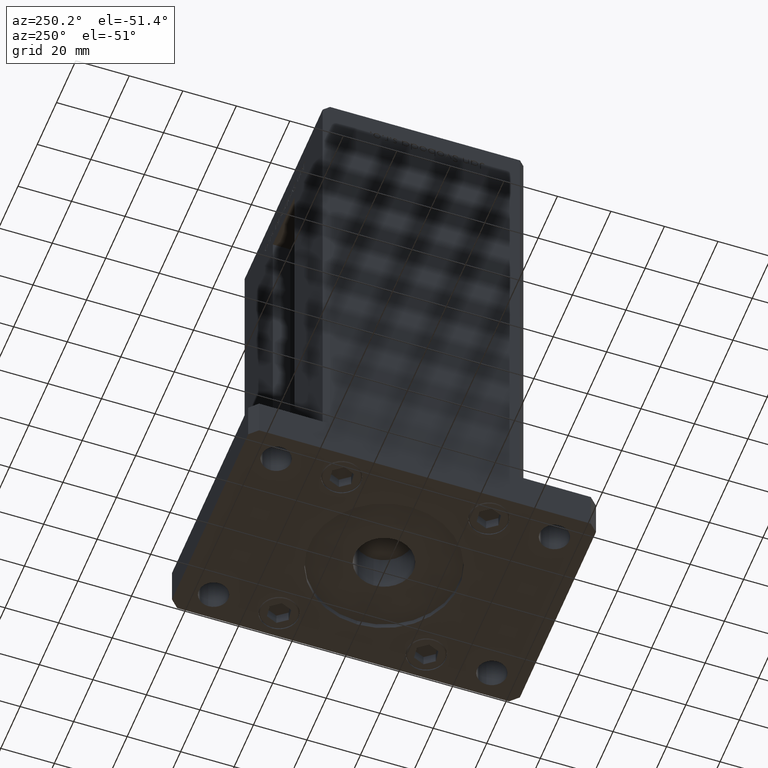
[diagram: clean part render]
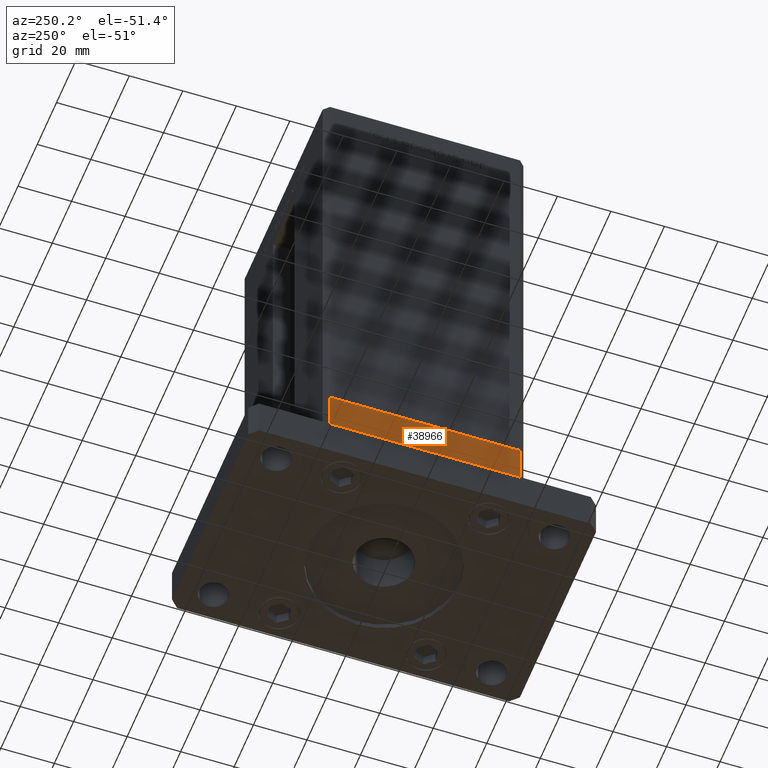
[diagram: same view with one face highlighted and labeled with its STEP entity id]
A machine part, auxiliary view. The second image highlights one B-rep face of the part: STEP entity #38966.
In plain terms, the highlighted planar face has unit normal (-1, 0, 0).
Its self-contained STEP definition (entity closure, byte-faithful):
#1072 = ORIENTED_EDGE ( 'NONE', *, *, #21638, .F. ) ;
#2598 = CARTESIAN_POINT ( 'NONE',  ( 42.50000000000000711, -35.50000000000000000, -15.00000000000000000 ) ) ;
#2867 = DIRECTION ( 'NONE',  ( -1.172770800660376741E-15, 1.000000000000000000, 0.000000000000000000 ) ) ;
#5345 = CARTESIAN_POINT ( 'NONE',  ( 42.50000000000000711, -35.50000000000000000, -15.00000000000000000 ) ) ;
#9788 = DIRECTION ( 'NONE',  ( 0.000000000000000000, 0.000000000000000000, 1.000000000000000000 ) ) ;
#10441 = VECTOR ( 'NONE', #37679, 1000.000000000000000 ) ;
#10653 = VERTEX_POINT ( 'NONE', #12504 ) ;
#12504 = CARTESIAN_POINT ( 'NONE',  ( 42.49999999999992895, 35.50000000000000000, 0.000000000000000000 ) ) ;
#13695 = PLANE ( 'NONE',  #13874 ) ;
#13874 = AXIS2_PLACEMENT_3D ( 'NONE', #2598, #22323, #18548 ) ;
#14137 = VERTEX_POINT ( 'NONE', #34360 ) ;
#14395 = VECTOR ( 'NONE', #2867, 1000.000000000000000 ) ;
#15114 = LINE ( 'NONE', #27219, #28299 ) ;
#15848 = VERTEX_POINT ( 'NONE', #22908 ) ;
#16449 = EDGE_CURVE ( 'NONE', #15848, #10653, #27392, .T. ) ;
#18548 = DIRECTION ( 'NONE',  ( -1.172770800660376741E-15, 1.000000000000000000, 0.000000000000000000 ) ) ;
#19577 = CARTESIAN_POINT ( 'NONE',  ( 42.49999999999992895, 35.50000000000000000, -15.00000000000000000 ) ) ;
#19918 = VECTOR ( 'NONE', #9788, 1000.000000000000000 ) ;
#21521 = LINE ( 'NONE', #5345, #10441 ) ;
#21638 = EDGE_CURVE ( 'NONE', #14137, #15848, #15114, .T. ) ;
#22323 = DIRECTION ( 'NONE',  ( 1.000000000000000000, 1.172770800660376741E-15, -0.000000000000000000 ) ) ;
#22908 = CARTESIAN_POINT ( 'NONE',  ( 42.50000000000000711, -35.50000000000000000, 0.000000000000000000 ) ) ;
#27219 = CARTESIAN_POINT ( 'NONE',  ( 42.50000000000000711, -35.50000000000000000, -15.00000000000000000 ) ) ;
#27392 = LINE ( 'NONE', #39788, #14395 ) ;
#28299 = VECTOR ( 'NONE', #31012, 1000.000000000000000 ) ;
#30654 = FACE_OUTER_BOUND ( 'NONE', #48455, .T. ) ;
#31012 = DIRECTION ( 'NONE',  ( 0.000000000000000000, 0.000000000000000000, 1.000000000000000000 ) ) ;
#32465 = ORIENTED_EDGE ( 'NONE', *, *, #16449, .F. ) ;
#34360 = CARTESIAN_POINT ( 'NONE',  ( 42.50000000000000711, -35.50000000000000000, -15.00000000000000000 ) ) ;
#37679 = DIRECTION ( 'NONE',  ( -1.172770800660376741E-15, 1.000000000000000000, 0.000000000000000000 ) ) ;
#38338 = LINE ( 'NONE', #46691, #19918 ) ;
#38966 = ADVANCED_FACE ( 'NONE', ( #30654 ), #13695, .T. ) ;
#39650 = EDGE_CURVE ( 'NONE', #46638, #10653, #38338, .T. ) ;
#39788 = CARTESIAN_POINT ( 'NONE',  ( 42.50000000000000711, -35.50000000000000000, 0.000000000000000000 ) ) ;
#39869 = EDGE_CURVE ( 'NONE', #14137, #46638, #21521, .T. ) ;
#46638 = VERTEX_POINT ( 'NONE', #19577 ) ;
#46691 = CARTESIAN_POINT ( 'NONE',  ( 42.49999999999992895, 35.50000000000000000, -15.00000000000000000 ) ) ;
#48455 = EDGE_LOOP ( 'NONE', ( #32465, #1072, #51718, #49408 ) ) ;
#49408 = ORIENTED_EDGE ( 'NONE', *, *, #39650, .T. ) ;
#51718 = ORIENTED_EDGE ( 'NONE', *, *, #39869, .T. ) ;